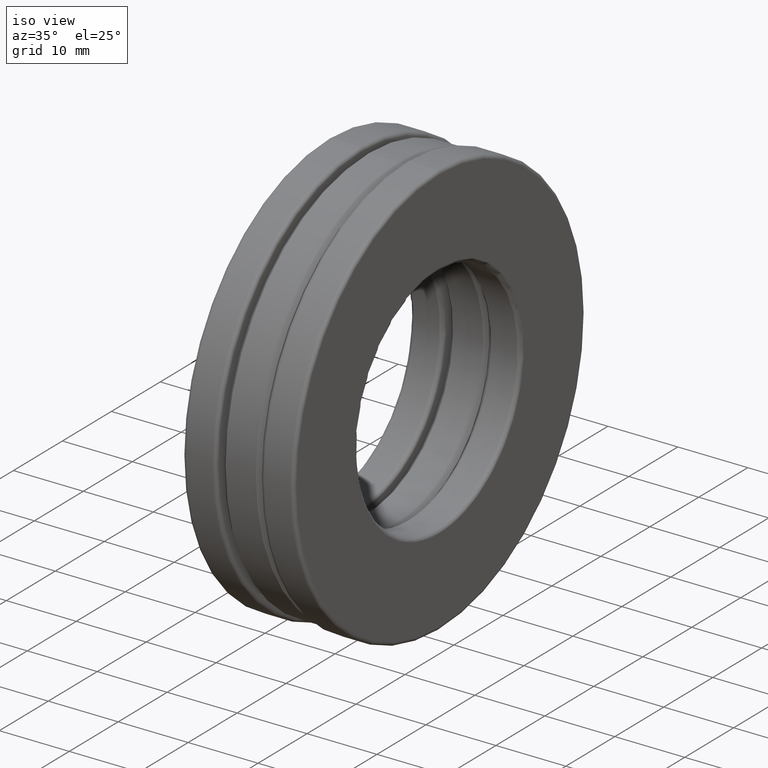
[diagram: clean part render]
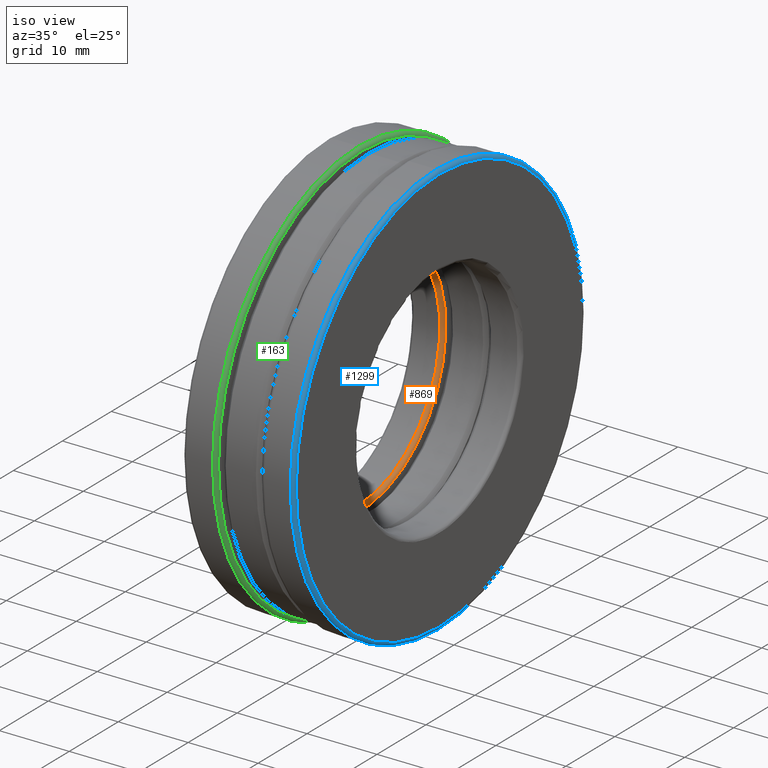
[diagram: same view with three faces highlighted in distinct colors, each labeled with its STEP entity id]
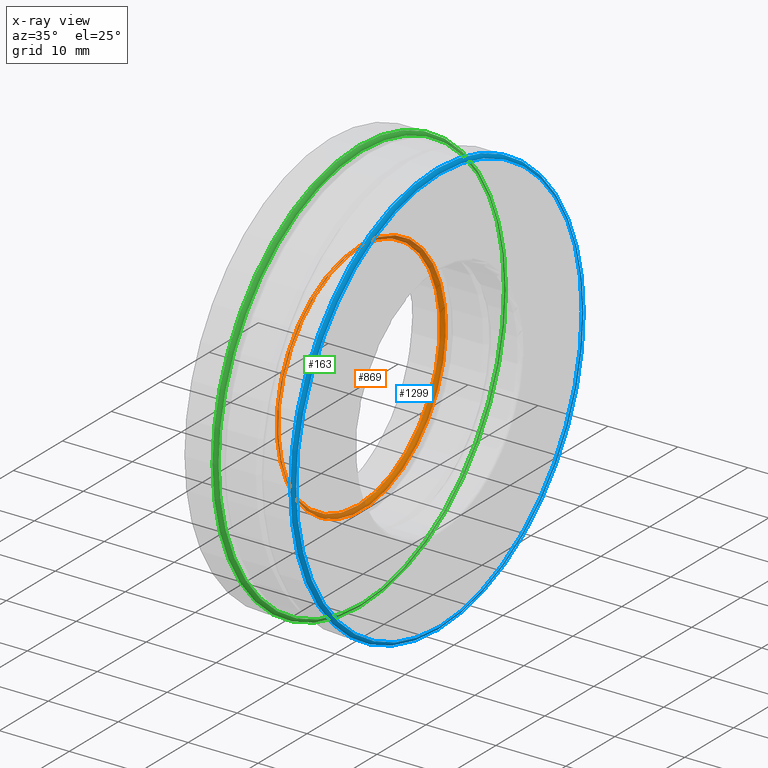
[diagram: x-ray of the same camera — body ghosted, the three highlighted faces saturated]
A machine part, iso view with three faces highlighted in distinct colors.
The next image is the same camera in x-ray (body ghosted, the three faces saturated) — at least one of them is partly hidden behind the body in this view.
Their STEP definitions:

[orange] entity #869 — the highlighted toroidal blend (fillet) surface has major radius 17.1767 mm and minor (blend) radius 0.508 mm.
#66 = DIRECTION ( 'NONE',  ( -1.000000000000000000, -0.0000000000000000000, -0.0000000000000000000 ) ) ;
#175 = VERTEX_POINT ( 'NONE', #860 ) ;
#184 = EDGE_CURVE ( 'NONE', #175, #175, #407, .T. ) ;
#189 = ORIENTED_EDGE ( 'NONE', *, *, #184, .F. ) ;
#274 = DIRECTION ( 'NONE',  ( 0.0000000000000000000, 0.0000000000000000000, 1.000000000000000000 ) ) ;
#334 = DIRECTION ( 'NONE',  ( -1.000000000000000000, -0.0000000000000000000, -0.0000000000000000000 ) ) ;
#384 = FACE_OUTER_BOUND ( 'NONE', #482, .T. ) ;
#407 = CIRCLE ( 'NONE', #1193, 0.6762500000000000200 ) ;
#482 = EDGE_LOOP ( 'NONE', ( #1034 ) ) ;
#496 = VERTEX_POINT ( 'NONE', #900 ) ;
#586 = AXIS2_PLACEMENT_3D ( 'NONE', #1124, #334, #1447 ) ;
#639 = DIRECTION ( 'NONE',  ( -1.000000000000000000, -0.0000000000000000000, -0.0000000000000000000 ) ) ;
#769 = DIRECTION ( 'NONE',  ( 0.0000000000000000000, 0.0000000000000000000, 1.000000000000000000 ) ) ;
#803 = TOROIDAL_SURFACE ( 'NONE', #586, 0.6762500000000000200, 0.02000000000000001800 ) ;
#855 = AXIS2_PLACEMENT_3D ( 'NONE', #1186, #66, #274 ) ;
#860 = CARTESIAN_POINT ( 'NONE',  ( -0.1250000000000000800, 0.0000000000000000000, 0.6762500000000000200 ) ) ;
#862 = CIRCLE ( 'NONE', #855, 0.6562500000000000000 ) ;
#869 = ADVANCED_FACE ( 'NONE', ( #1115, #384 ), #803, .T. ) ;
#900 = CARTESIAN_POINT ( 'NONE',  ( -0.1450000000000000500, 0.0000000000000000000, 0.6562500000000000000 ) ) ;
#952 = EDGE_LOOP ( 'NONE', ( #189 ) ) ;
#971 = CARTESIAN_POINT ( 'NONE',  ( -0.1250000000000000800, 0.0000000000000000000, 0.0000000000000000000 ) ) ;
#1034 = ORIENTED_EDGE ( 'NONE', *, *, #1229, .T. ) ;
#1115 = FACE_OUTER_BOUND ( 'NONE', #952, .T. ) ;
#1124 = CARTESIAN_POINT ( 'NONE',  ( -0.1450000000000000500, 0.0000000000000000000, 0.0000000000000000000 ) ) ;
#1186 = CARTESIAN_POINT ( 'NONE',  ( -0.1450000000000000500, 0.0000000000000000000, 0.0000000000000000000 ) ) ;
#1193 = AXIS2_PLACEMENT_3D ( 'NONE', #971, #639, #769 ) ;
#1229 = EDGE_CURVE ( 'NONE', #496, #496, #862, .T. ) ;
#1447 = DIRECTION ( 'NONE',  ( 0.0000000000000000000, 0.0000000000000000000, 1.000000000000000000 ) ) ;

[blue] entity #1299 — the highlighted toroidal blend (fillet) surface has major radius 29.2576 mm and minor (blend) radius 0.508 mm.
#100 = DIRECTION ( 'NONE',  ( 0.0000000000000000000, 0.0000000000000000000, 1.000000000000000000 ) ) ;
#254 = CIRCLE ( 'NONE', #1318, 1.171875000000000200 ) ;
#309 = DIRECTION ( 'NONE',  ( 0.0000000000000000000, 0.0000000000000000000, 1.000000000000000000 ) ) ;
#396 = VERTEX_POINT ( 'NONE', #879 ) ;
#417 = DIRECTION ( 'NONE',  ( 0.0000000000000000000, 0.0000000000000000000, 1.000000000000000000 ) ) ;
#544 = CARTESIAN_POINT ( 'NONE',  ( 0.3125000000000000000, 0.0000000000000000000, 0.0000000000000000000 ) ) ;
#624 = EDGE_CURVE ( 'NONE', #396, #396, #254, .T. ) ;
#698 = AXIS2_PLACEMENT_3D ( 'NONE', #544, #1011, #100 ) ;
#731 = FACE_OUTER_BOUND ( 'NONE', #778, .T. ) ;
#778 = EDGE_LOOP ( 'NONE', ( #794 ) ) ;
#794 = ORIENTED_EDGE ( 'NONE', *, *, #836, .T. ) ;
#834 = AXIS2_PLACEMENT_3D ( 'NONE', #973, #1098, #417 ) ;
#836 = EDGE_CURVE ( 'NONE', #1310, #1310, #1136, .T. ) ;
#879 = CARTESIAN_POINT ( 'NONE',  ( 0.2925000000000000400, 0.0000000000000000000, 1.171875000000000200 ) ) ;
#899 = DIRECTION ( 'NONE',  ( -1.000000000000000000, -0.0000000000000000000, -0.0000000000000000000 ) ) ;
#921 = EDGE_LOOP ( 'NONE', ( #993 ) ) ;
#953 = TOROIDAL_SURFACE ( 'NONE', #834, 1.151875000000000200, 0.02000000000000000700 ) ;
#973 = CARTESIAN_POINT ( 'NONE',  ( 0.2925000000000000400, 0.0000000000000000000, 0.0000000000000000000 ) ) ;
#993 = ORIENTED_EDGE ( 'NONE', *, *, #624, .F. ) ;
#1011 = DIRECTION ( 'NONE',  ( -1.000000000000000000, -0.0000000000000000000, -0.0000000000000000000 ) ) ;
#1098 = DIRECTION ( 'NONE',  ( -1.000000000000000000, -0.0000000000000000000, -0.0000000000000000000 ) ) ;
#1136 = CIRCLE ( 'NONE', #698, 1.151875000000000200 ) ;
#1213 = CARTESIAN_POINT ( 'NONE',  ( 0.2925000000000000400, 0.0000000000000000000, 0.0000000000000000000 ) ) ;
#1299 = ADVANCED_FACE ( 'NONE', ( #1348, #731 ), #953, .T. ) ;
#1310 = VERTEX_POINT ( 'NONE', #1434 ) ;
#1318 = AXIS2_PLACEMENT_3D ( 'NONE', #1213, #899, #309 ) ;
#1348 = FACE_OUTER_BOUND ( 'NONE', #921, .T. ) ;
#1434 = CARTESIAN_POINT ( 'NONE',  ( 0.3125000000000000000, 0.0000000000000000000, 1.151875000000000200 ) ) ;

[green] entity #163 — the highlighted toroidal blend (fillet) surface has major radius 29.2576 mm and minor (blend) radius 0.508 mm.
#156 = AXIS2_PLACEMENT_3D ( 'NONE', #158, #501, #841 ) ;
#158 = CARTESIAN_POINT ( 'NONE',  ( -0.1250000000000000600, 0.0000000000000000000, 0.0000000000000000000 ) ) ;
#163 = ADVANCED_FACE ( 'NONE', ( #918, #835 ), #542, .T. ) ;
#260 = AXIS2_PLACEMENT_3D ( 'NONE', #1467, #1131, #446 ) ;
#296 = EDGE_LOOP ( 'NONE', ( #1395 ) ) ;
#353 = CIRCLE ( 'NONE', #156, 1.151875000000000200 ) ;
#375 = EDGE_CURVE ( 'NONE', #1231, #1231, #353, .T. ) ;
#383 = ORIENTED_EDGE ( 'NONE', *, *, #548, .F. ) ;
#446 = DIRECTION ( 'NONE',  ( 0.0000000000000000000, 0.0000000000000000000, 1.000000000000000000 ) ) ;
#501 = DIRECTION ( 'NONE',  ( -1.000000000000000000, -0.0000000000000000000, -0.0000000000000000000 ) ) ;
#542 = TOROIDAL_SURFACE ( 'NONE', #260, 1.151875000000000200, 0.01999999999999993100 ) ;
#548 = EDGE_CURVE ( 'NONE', #622, #622, #832, .T. ) ;
#622 = VERTEX_POINT ( 'NONE', #1320 ) ;
#832 = CIRCLE ( 'NONE', #917, 1.171875000000000000 ) ;
#835 = FACE_OUTER_BOUND ( 'NONE', #296, .T. ) ;
#841 = DIRECTION ( 'NONE',  ( 0.0000000000000000000, 0.0000000000000000000, 1.000000000000000000 ) ) ;
#917 = AXIS2_PLACEMENT_3D ( 'NONE', #1333, #1217, #1341 ) ;
#918 = FACE_OUTER_BOUND ( 'NONE', #964, .T. ) ;
#964 = EDGE_LOOP ( 'NONE', ( #383 ) ) ;
#1103 = CARTESIAN_POINT ( 'NONE',  ( -0.1250000000000000600, 0.0000000000000000000, 1.151875000000000200 ) ) ;
#1131 = DIRECTION ( 'NONE',  ( -1.000000000000000000, -0.0000000000000000000, -0.0000000000000000000 ) ) ;
#1217 = DIRECTION ( 'NONE',  ( -1.000000000000000000, -0.0000000000000000000, -0.0000000000000000000 ) ) ;
#1231 = VERTEX_POINT ( 'NONE', #1103 ) ;
#1320 = CARTESIAN_POINT ( 'NONE',  ( -0.1450000000000000200, 0.0000000000000000000, 1.171875000000000000 ) ) ;
#1333 = CARTESIAN_POINT ( 'NONE',  ( -0.1450000000000000200, 0.0000000000000000000, 0.0000000000000000000 ) ) ;
#1341 = DIRECTION ( 'NONE',  ( 0.0000000000000000000, 0.0000000000000000000, 1.000000000000000000 ) ) ;
#1395 = ORIENTED_EDGE ( 'NONE', *, *, #375, .T. ) ;
#1467 = CARTESIAN_POINT ( 'NONE',  ( -0.1450000000000000200, 0.0000000000000000000, 0.0000000000000000000 ) ) ;